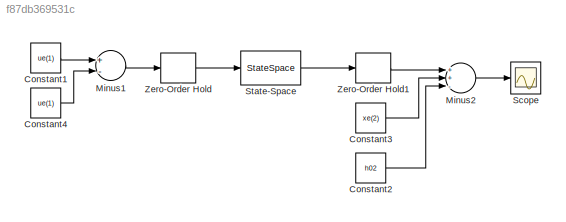
MODEL slx_f87db369531c
KIND model
CONFIG AbsTol = auto
CONFIG EnableMultiTasking = off
CONFIG FixedStep = auto
CONFIG InitFcn = load('workspace.mat')
CONFIG MaxStep = auto
CONFIG MinStep = auto
CONFIG RelTol = 1e-3
CONFIG SampleTimeConstraint = Unconstrained
CONFIG Solver = VariableStepAuto
CONFIG SolverName = VariableStepAuto
CONFIG StartTime = 0.0
CONFIG StopTime = 10.0
BLOCK [Constant] Constant1
  Value = ue(1)
BLOCK [Constant] Constant2
  Value = h02
BLOCK [Constant] Constant3
  Value = xe(2)
BLOCK [Constant] Constant4
  Value = ue(1)
BLOCK [Sum] Minus1
  InputSameDT = off
  Inputs = +-
  OutDataTypeStr = Inherit: Inherit via internal rule
  Ports = [2, 1]
  SaturateOnIntegerOverflow = off
BLOCK [Sum] Minus2
  InputSameDT = off
  Inputs = ++-
  OutDataTypeStr = Inherit: Inherit via internal rule
  Ports = [3, 1]
  SaturateOnIntegerOverflow = off
BLOCK [Scope] Scope
  Floating = off
  NumInputPorts = 1
  Ports = [1]
  ScopeSpecificationString = Simulink.scopes.TimeScopeBlockCfg('CurrentConfiguration', extmgr.ConfigurationSet(extmgr.Configuration('Core','General UI',true),extmgr.Configuration('Core','Source UI',true),extmgr.Configuration('Sources','WiredSimulink',true),extmgr.Configuration('Visuals','Time Domain',true,'SerializedDisplays',{struct('MinYLimReal','5.00000','MaxYLimReal','25.00000','YLabelReal','','MinYLimMag','5.00000','MaxY...<+1328ch>
BLOCK [StateSpace] State-Space
  A = A
  B = b
  C = [0, 1]
  D = 0
  InitialCondition = 0
  Ports = [1, 1]
BLOCK [ZeroOrderHold] Zero-Order Hold
  SampleTime = Ts
BLOCK [ZeroOrderHold] Zero-Order Hold1
  SampleTime = Ts
LINE Constant1:1 -> Minus1:1
LINE Constant2:1 -> Minus2:3
LINE Constant3:1 -> Minus2:2
LINE Constant4:1 -> Minus1:2
LINE Minus1:1 -> Zero-Order Hold:1
LINE Minus2:1 -> Scope:1
LINE State-Space:1 -> Zero-Order Hold1:1
LINE Zero-Order Hold1:1 -> Minus2:1
LINE Zero-Order Hold:1 -> State-Space:1
